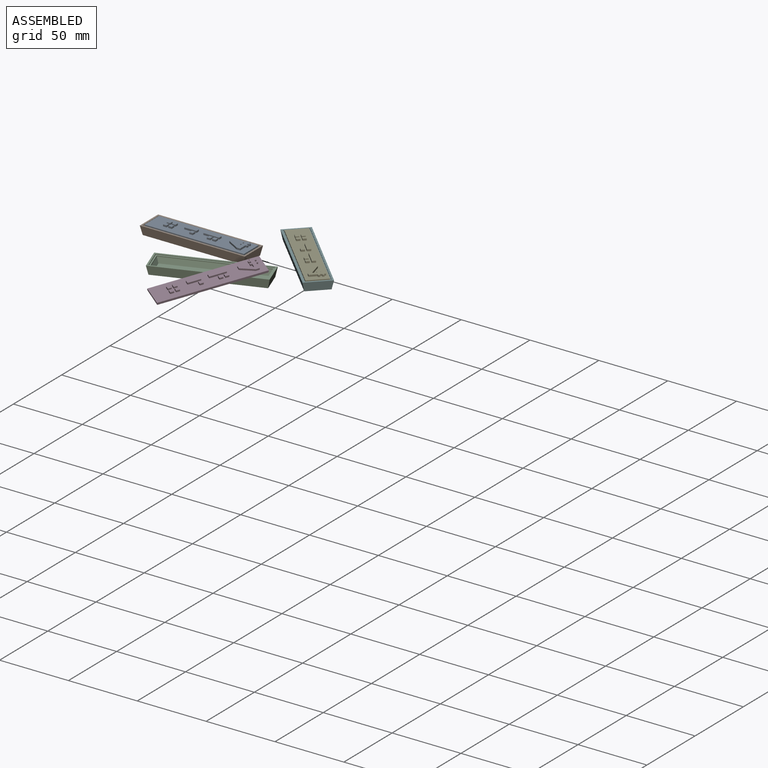
[diagram: assembled view]
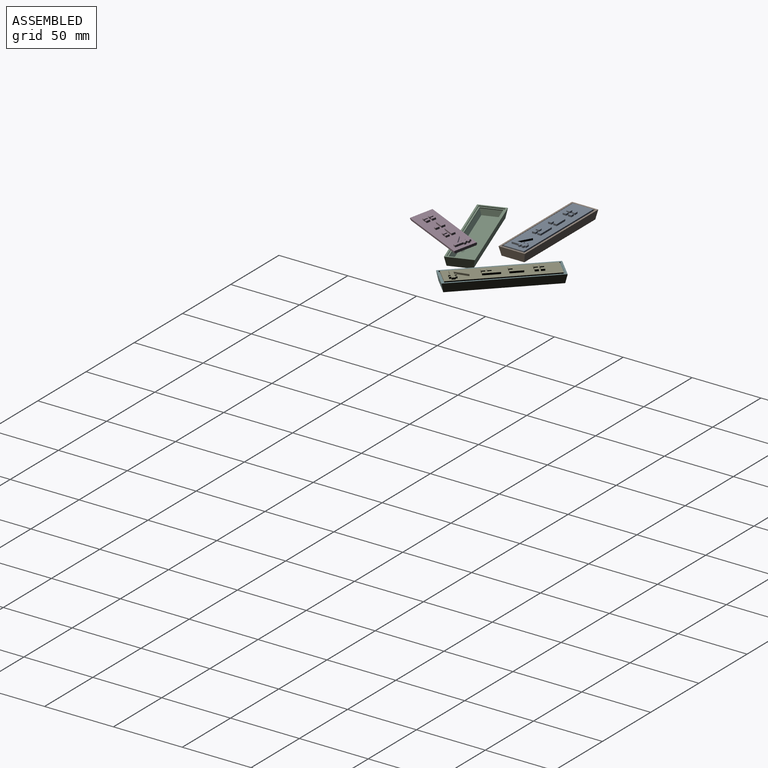
[diagram: assembled view, second angle]
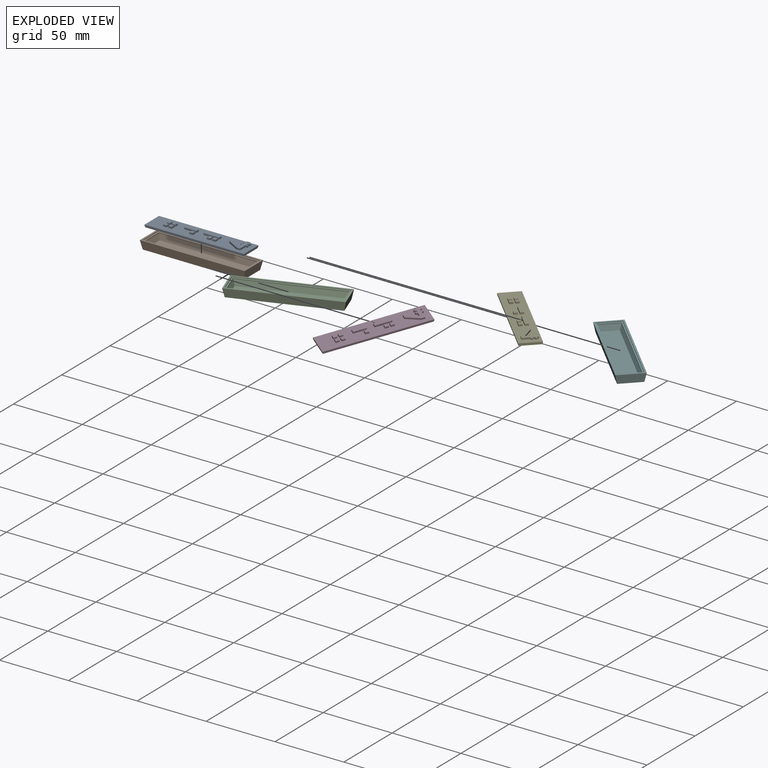
[diagram: exploded view]
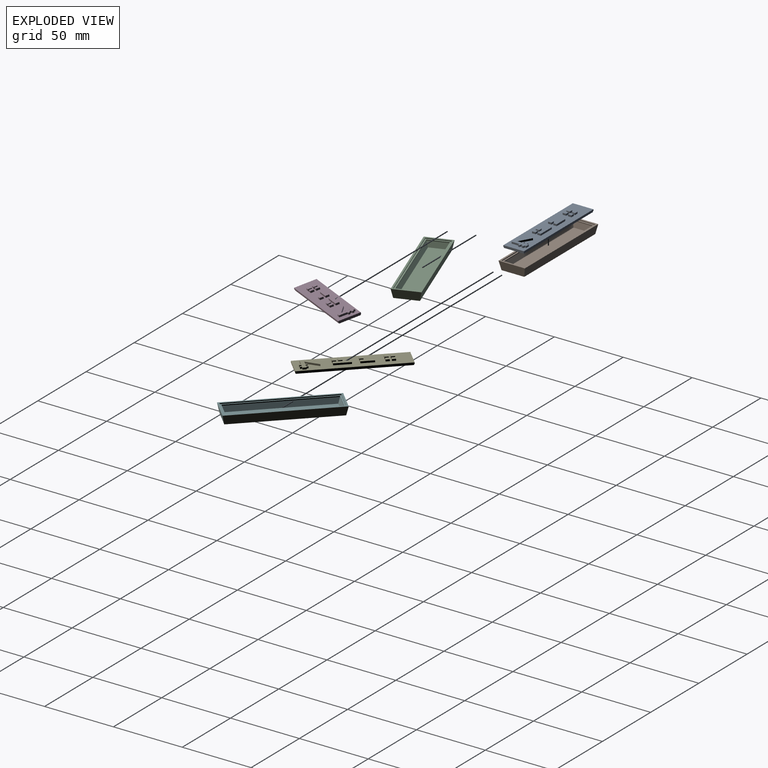
[diagram: exploded view, second angle]
ASSEMBLY  parts=6 mates=2
PART A: 80 faces, bbox 72.1x15x3 mm
  f0: plane 14.48x0.76mm, normal (-1,0,0), area 11mm2, adj f1,f3,f5,f75
  f1: plane 71.63x0.76mm, normal (0,-1,0), area 54.6mm2, adj f0,f4,f5,f75
  f2: plane 72.14x14.99mm, normal (0,0,1), area 928.4mm2, adj f6,f7,f8,f9,f11,f12,f13,f14
  f3: plane 71.63x0.76mm, normal (0,1,0), area 54.6mm2, adj f0,f4,f5,f75
  f4: plane 14.48x0.76mm, normal (1,0,0), area 11mm2, adj f1,f3,f5,f75
  f5: plane 71.63x14.48mm, normal (0,0,-1), area 1037mm2, adj f0,f1,f3,f4
  f6: plane 2.54x1.27mm, normal (0,1,0), area 3.2mm2, adj f2,f7,f9,f10
  f7: plane 2.54x1.27mm, normal (-1,0,0), area 3.2mm2, adj f2,f6,f8,f10
  f8: plane 2.54x1.27mm, normal (0,-1,0), area 3.2mm2, adj f2,f7,f9,f10
  f9: plane 2.54x1.27mm, normal (1,0,0), area 3.2mm2, adj f2,f6,f8,f10
  f10: plane 2.54x2.54mm, normal (0,0,1), area 6.5mm2, adj f6,f7,f8,f9
  f11: plane 2.54x1.27mm, normal (0,1,0), area 3.2mm2, adj f2,f12,f14,f15
  f12: plane 2.54x1.27mm, normal (-1,0,0), area 3.2mm2, adj f2,f11,f13,f15
  f13: plane 2.54x1.27mm, normal (0,-1,0), area 3.2mm2, adj f2,f12,f14,f15
  f14: plane 2.54x1.27mm, normal (1,0,0), area 3.2mm2, adj f2,f11,f13,f15
  f15: plane 2.54x2.54mm, normal (0,0,1), area 6.5mm2, adj f11,f12,f13,f14
  f16: plane 2.54x1.27mm, normal (0,1,0), area 3.2mm2, adj f2,f17,f19,f20
  f17: plane 2.54x1.27mm, normal (-1,0,0), area 3.2mm2, adj f2,f16,f18,f20
  f18: plane 2.54x1.27mm, normal (0,-1,0), area 3.2mm2, adj f2,f17,f19,f20
  f19: plane 2.54x1.27mm, normal (1,0,0), area 3.2mm2, adj f2,f16,f18,f20
  f20: plane 2.54x2.54mm, normal (0,0,1), area 6.5mm2, adj f16,f17,f18,f19
  f21: plane 2.54x1.27mm, normal (0,1,0), area 3.2mm2, adj f2,f22,f24,f25
  f22: plane 2.54x1.27mm, normal (-1,0,0), area 3.2mm2, adj f2,f21,f23,f25
  f23: plane 2.54x1.27mm, normal (0,-1,0), area 3.2mm2, adj f2,f22,f24,f25
  f24: plane 2.54x1.27mm, normal (1,0,0), area 3.2mm2, adj f2,f21,f23,f25
  f25: plane 2.54x2.54mm, normal (0,0,1), area 6.5mm2, adj f21,f22,f23,f24
  f26: plane 8.89x1.27mm, normal (0,1,0), area 11.3mm2, adj f2,f27,f29,f30
  f27: plane 2.54x1.27mm, normal (-1,0,0), area 3.2mm2, adj f2,f26,f28,f30
  f28: plane 8.89x1.27mm, normal (0,-1,0), area 11.3mm2, adj f2,f27,f29,f30
  f29: plane 2.54x1.27mm, normal (1,0,0), area 3.2mm2, adj f2,f26,f28,f30
  f30: plane 8.89x2.54mm, normal (0,0,1), area 22.6mm2, adj f26,f27,f28,f29
  f31: plane 2.54x1.27mm, normal (-1,0,0), area 3.2mm2, adj f2,f32,f34,f35
  f32: plane 2.54x1.27mm, normal (0,-1,0), area 3.2mm2, adj f2,f31,f33,f35
  f33: plane 2.54x1.27mm, normal (1,0,0), area 3.2mm2, adj f2,f32,f34,f35
  f34: plane 2.54x1.27mm, normal (0,1,0), area 3.2mm2, adj f2,f31,f33,f35
  f35: plane 2.54x2.54mm, normal (0,0,1), area 6.5mm2, adj f31,f32,f33,f34
  f36: plane 11.43x1.27mm, normal (0,1,0), area 14.5mm2, adj f2,f37,f39,f40
  f37: plane 2.54x1.27mm, normal (-1,0,0), area 3.2mm2, adj f2,f36,f38,f40
  f38: plane 11.43x1.27mm, normal (0,-1,0), area 14.5mm2, adj f2,f37,f39,f40
  f39: plane 2.54x1.27mm, normal (1,0,0), area 3.2mm2, adj f2,f36,f38,f40
  f40: plane 11.43x2.54mm, normal (0,0,1), area 29mm2, adj f36,f37,f38,f39
  f41: plane 2.54x1.27mm, normal (0,-1,0), area 3.2mm2, adj f2,f42,f44,f45
  f42: plane 2.54x1.27mm, normal (1,0,0), area 3.2mm2, adj f2,f41,f43,f45
  f43: plane 2.54x1.27mm, normal (0,1,0), area 3.2mm2, adj f2,f42,f44,f45
  f44: plane 2.54x1.27mm, normal (-1,0,0), area 3.2mm2, adj f2,f41,f43,f45
  f45: plane 2.54x2.54mm, normal (0,0,1), area 6.5mm2, adj f41,f42,f43,f44
  f46: plane 2.54x1.27mm, normal (0,-1,0), area 3.2mm2, adj f2,f47,f49,f50
  f47: plane 2.54x1.27mm, normal (1,0,0), area 3.2mm2, adj f2,f46,f48,f50
  f48: plane 2.54x1.27mm, normal (0,1,0), area 3.2mm2, adj f2,f47,f49,f50
  f49: plane 2.54x1.27mm, normal (-1,0,0), area 3.2mm2, adj f2,f46,f48,f50
  f50: plane 2.54x2.54mm, normal (0,0,1), area 6.5mm2, adj f46,f47,f48,f49
  f51: plane 8.8x5.08mm, normal (0.5,0.87,0), area 12.9mm2, adj f2,f52,f73,f74
  f52: plane 2.54x1.27mm, normal (-1,0,0), area 3.2mm2, adj f2,f51,f53,f74
  f53: plane 8.8x5.08mm, normal (-0.5,-0.87,0), area 12.9mm2, adj f2,f52,f54,f74
  f54: plane 2.54x1.27mm, normal (0,-1,0), area 3.2mm2, adj f2,f53,f55,f74
  f55: plane 5.59x1.27mm, normal (1,0,0), area 7.1mm2, adj f2,f54,f56,f74
  f56: plane 1.27x1.27mm, normal (0,-1,0), area 1.6mm2, adj f2,f55,f57,f74
  f57: plane 1.27x1.27mm, normal (1,0,0), area 1.6mm2, adj f2,f56,f58,f74
  f58: plane 1.27x1.27mm, normal (0,1,0), area 1.6mm2, adj f2,f57,f59,f74
  f59: plane 1.27x1.27mm, normal (1,0,0), area 1.6mm2, adj f2,f58,f60,f74
  f60: plane 1.27x1.27mm, normal (0,-1,0), area 1.6mm2, adj f2,f59,f61,f74
  f61: plane 1.27x1.27mm, normal (1,0,0), area 1.6mm2, adj f2,f60,f62,f74
  f62: plane 1.27x1.27mm, normal (0,1,0), area 1.6mm2, adj f2,f61,f63,f74
  f63: plane 1.27x1.27mm, normal (1,0,0), area 1.6mm2, adj f2,f62,f64,f74
  f64: plane 2.54x1.27mm, normal (0,1,0), area 3.2mm2, adj f2,f63,f65,f74
  f65: plane 1.27x1.27mm, normal (-1,0,0), area 1.6mm2, adj f2,f64,f66,f74
  f66: plane 1.27x1.27mm, normal (0,1,0), area 1.6mm2, adj f2,f65,f67,f74
  f67: plane 1.27x1.27mm, normal (-1,0,0), area 1.6mm2, adj f2,f66,f68,f74
  f68: plane 1.27x1.27mm, normal (0,-1,0), area 1.6mm2, adj f2,f67,f69,f74
  f69: plane 1.27x1.27mm, normal (-1,0,0), area 1.6mm2, adj f2,f68,f70,f74
  f70: plane 1.27x1.27mm, normal (0,1,0), area 1.6mm2, adj f2,f69,f71,f74
  f71: plane 1.27x1.27mm, normal (-1,0,0), area 1.6mm2, adj f2,f70,f72,f74
  f72: plane 1.27x1.27mm, normal (0,-1,0), area 1.6mm2, adj f2,f71,f73,f74
  f73: plane 3.05x1.27mm, normal (-1,0,0), area 3.9mm2, adj f2,f51,f72,f74
  f74: plane 12.61x10.67mm, normal (0,0,1), area 55.9mm2, adj f51,f52,f53,f54,f55,f56,f57,f58
  f75: plane 72.14x14.99mm, normal (0,0,-1), area 44mm2, adj f0,f1,f3,f4,f76,f77,f78,f79
  f76: plane 72.14x1.02mm, normal (0,-1,0), area 73.3mm2, adj f2,f75,f78,f79
  f77: plane 72.14x1.02mm, normal (0,1,0), area 73.3mm2, adj f2,f75,f78,f79
  f78: plane 14.99x1.02mm, normal (-1,0,0), area 15.2mm2, adj f2,f75,f76,f77
  f79: plane 14.99x1.02mm, normal (1,0,0), area 15.2mm2, adj f2,f75,f76,f77
PART B: 20 faces, bbox 76.2x19.1x6.4 mm
  f0: plane 76.2x19.05mm, normal (0,0,1), area 235.5mm2, adj f2,f3,f4,f5,f6,f7,f8,f9
  f1: plane 73.66x16.51mm, normal (0,0,-1), area 1216.1mm2, adj f2,f3,f4,f5
  f2: plane 76.2x6.35mm, normal (0,-0.98,-0.2), area 485.2mm2, adj f0,f1,f3,f4
  f3: plane 19.05x6.35mm, normal (-0.98,0,-0.2), area 115.1mm2, adj f0,f1,f2,f5
  f4: plane 19.05x6.35mm, normal (0.98,0,-0.2), area 115.1mm2, adj f0,f1,f2,f5
  f5: plane 76.2x6.35mm, normal (0,0.98,-0.2), area 485.2mm2, adj f0,f1,f3,f4
  f6: plane 73.66x0.64mm, normal (0,-1,0), area 46.8mm2, adj f0,f7,f9,f10
  f7: plane 16.51x0.64mm, normal (1,0,0), area 10.5mm2, adj f0,f6,f8,f10
  f8: plane 73.66x0.64mm, normal (0,1,0), area 46.8mm2, adj f0,f7,f9,f10
  f9: plane 16.51x0.64mm, normal (-1,0,0), area 10.5mm2, adj f0,f6,f8,f10
  f10: plane 73.66x16.51mm, normal (0,0,1), area 179.1mm2, adj f6,f7,f8,f9,f11,f12,f13,f14
  f11: plane 71.63x0.64mm, normal (0,-1,0), area 45.5mm2, adj f10,f12,f14,f18
  f12: plane 14.48x0.64mm, normal (1,0,0), area 9.2mm2, adj f10,f11,f13,f16
  f13: plane 71.63x0.64mm, normal (0,1,0), area 45.5mm2, adj f10,f12,f14,f17
  f14: plane 14.48x0.64mm, normal (-1,0,0), area 9.2mm2, adj f10,f11,f13,f19
  f15: plane 69.09x11.94mm, normal (0,0,1), area 824.8mm2, adj f16,f17,f18,f19
  f16: plane 14.48x3.81mm, normal (0.95,0,0.32), area 53mm2, adj f12,f15,f17,f18
  f17: plane 71.63x3.81mm, normal (0,0.95,0.32), area 282.6mm2, adj f13,f15,f16,f19
  f18: plane 71.63x3.81mm, normal (0,-0.95,0.32), area 282.6mm2, adj f11,f15,f16,f19
  f19: plane 14.48x3.81mm, normal (-0.95,0,0.32), area 53mm2, adj f14,f15,f17,f18
PART C: same geometry as B
PART D: same geometry as A
PART E: same geometry as A
PART F: same geometry as B
PLACE A t=(-9.78,-5.1,3.78)mm
PLACE B t=(-11.3,0.82,-1.18)mm
PLACE C rot(axis=(0,0,1),20deg) t=(16.34,-31.96,-1.18)mm
PLACE D rot(axis=(0.25,-0.01,0.97),58.9deg) t=(28.68,-54.35,3.9)mm
PLACE E rot(axis=(0,0,-1),45deg) t=(58.26,8.35,3.98)mm
PLACE F rot(axis=(0,0,-1),45deg) t=(61.37,13.61,-0.98)mm
MATE parallel A.f75 <-> B.f10  axis (0,0,-1) through (-9.39,-5.83,4.54)mm
MATE parallel E.f75 <-> F.f10  axis (0,0,-1) through (58.02,7.57,4.74)mm
